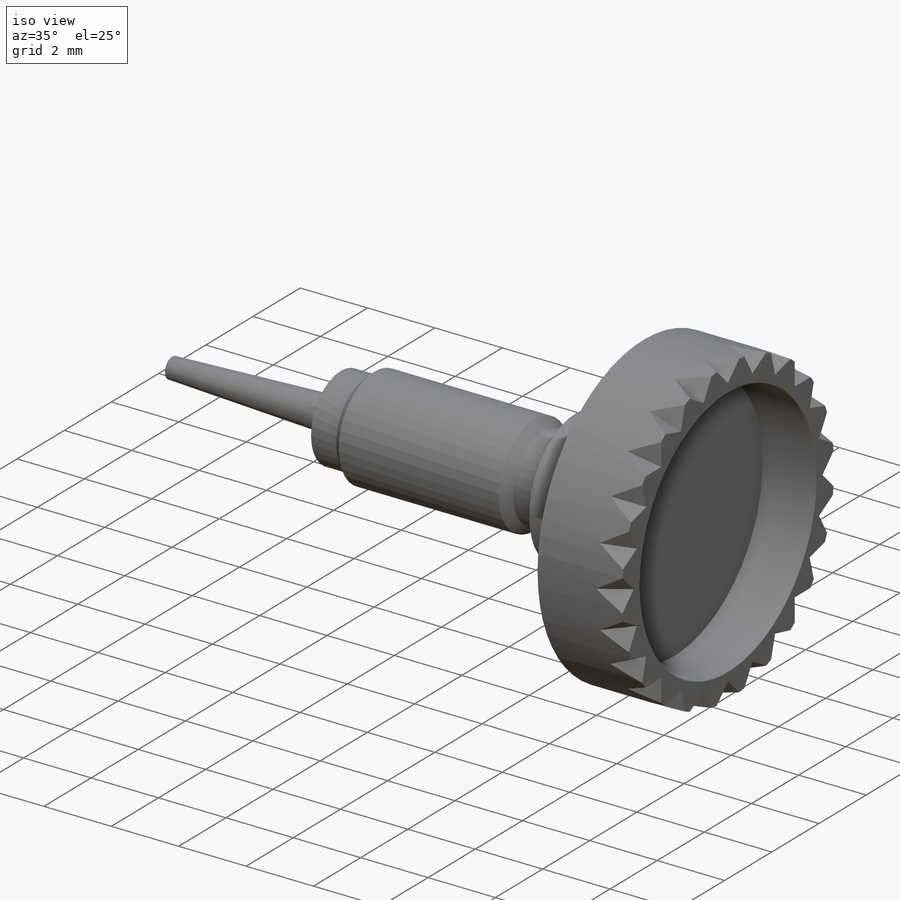
[diagram: iso view]
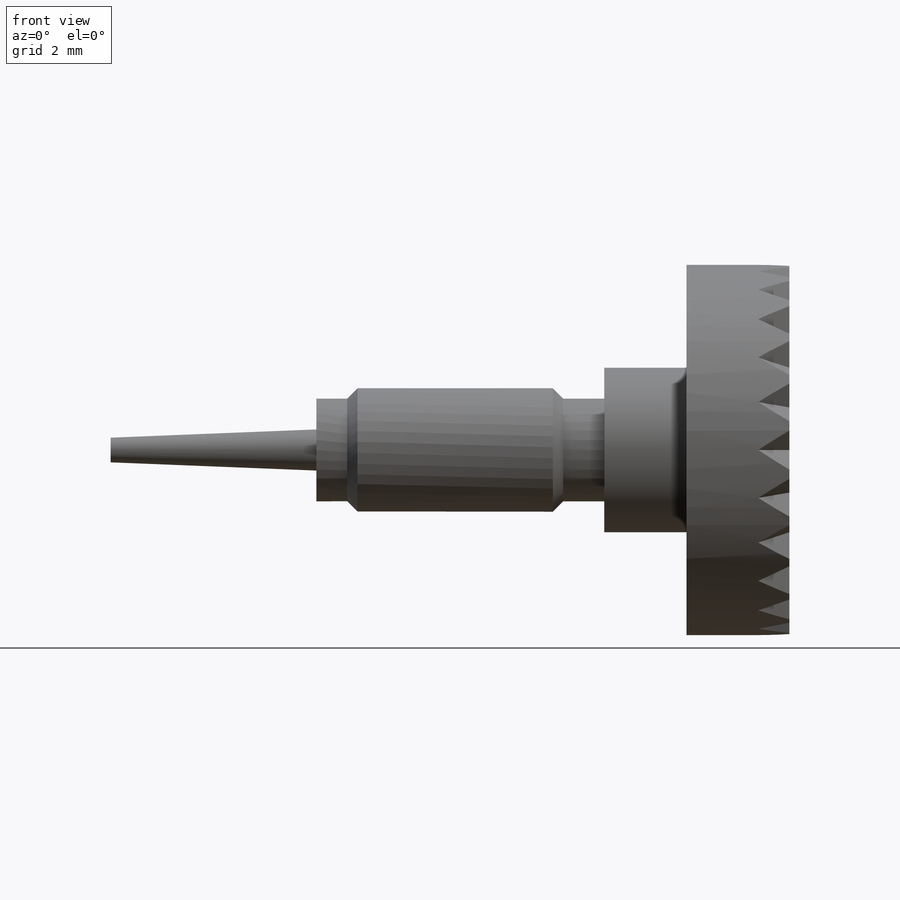
[diagram: front view]
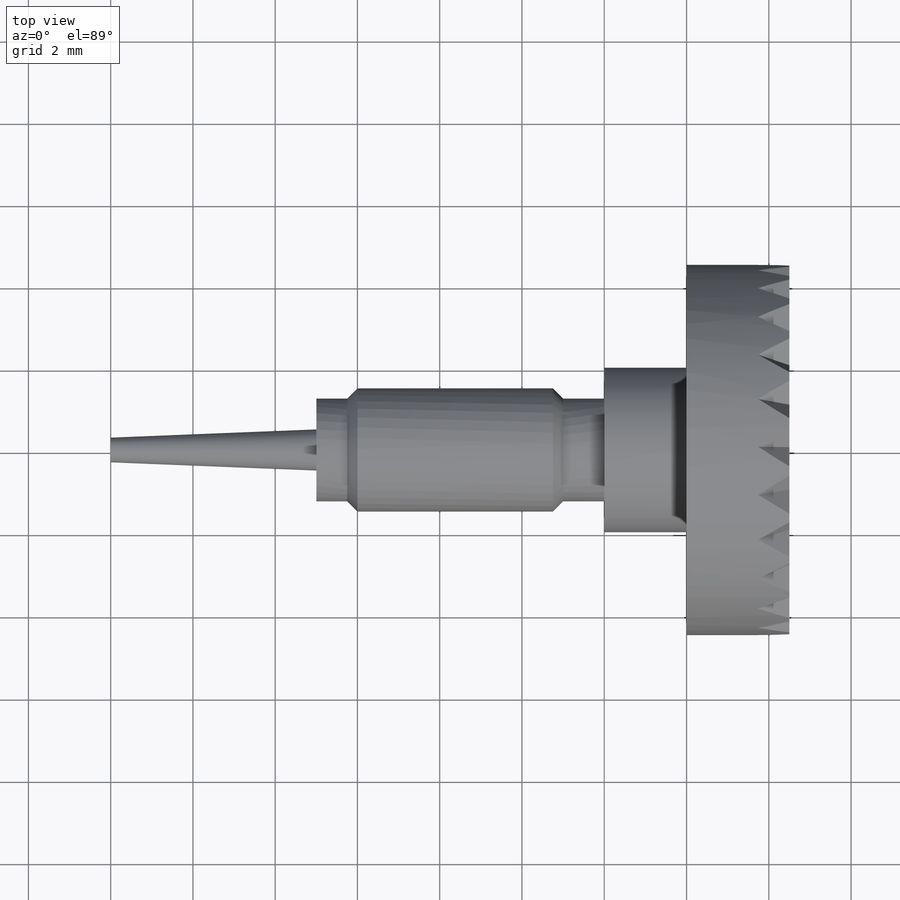
[diagram: top view]
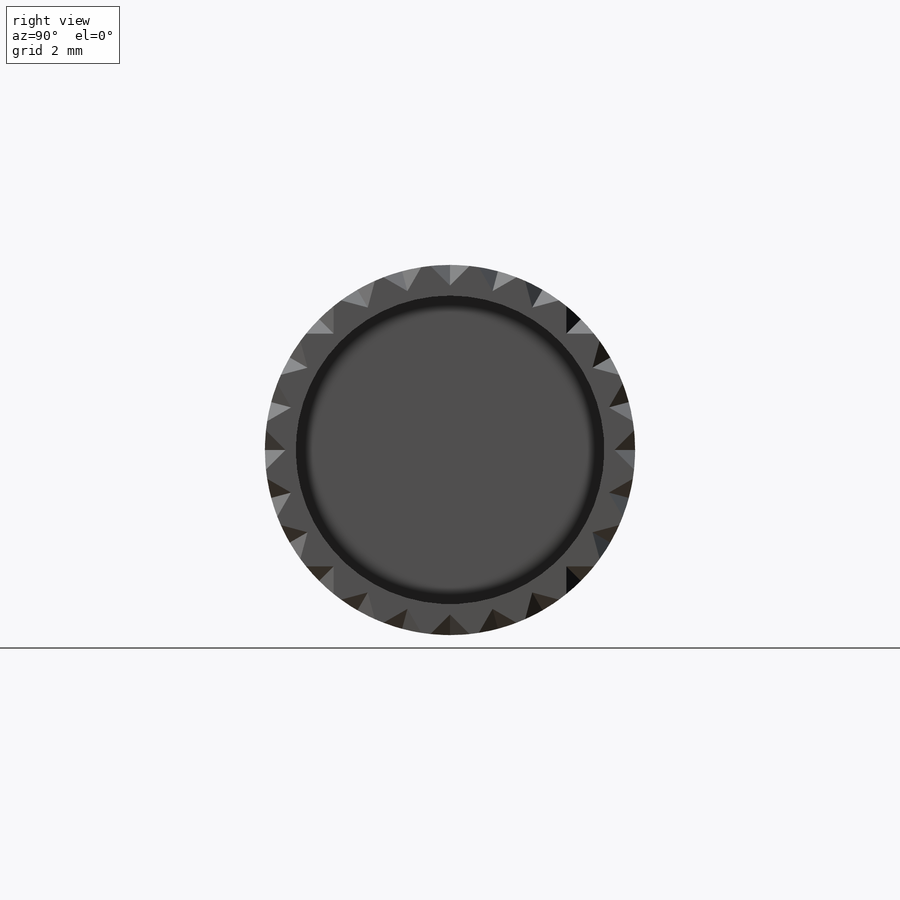
[diagram: right view]
SOLIDWORKS PART (.sldprt)
format: sldprt  version: not decoded by parser v0  size: 302,080 bytes
history: native  units: mm
features: sketch x2, material x1, revolve x1, cut_extrude x1, pattern_circular x1 (+13 scaffold rows collapsed)
feature tree (19):
  scaffold x13  (default folders/planes/origin — collapsed)
  material  "Material <not specified>"
  sketch  "Sketch1"  dims[D1=0.6mm D2=1.0mm D3=5.0mm D4=2.5mm D5=0.75mm D6=3.0mm D7=11.0mm D8=4.0mm D9=9.0mm D10=7.5mm D11=2.5mm D12=1.6mm D13=16.5mm D14=12.0mm]
  revolve  "Revolve1"  Angle=360deg
  sketch  "Sketch2"  dims[D1=4.0mm D2=2.5mm]
  cut_extrude  "Cut-Extrude1"  Depth=1mm
  pattern_circular  "CirPattern1"  Count=24 Angle=360deg
decode coverage: 5 of 5 modeling features carry decoded parameters
note: suppression state not decoded; provenance and decode notes live in map.json
